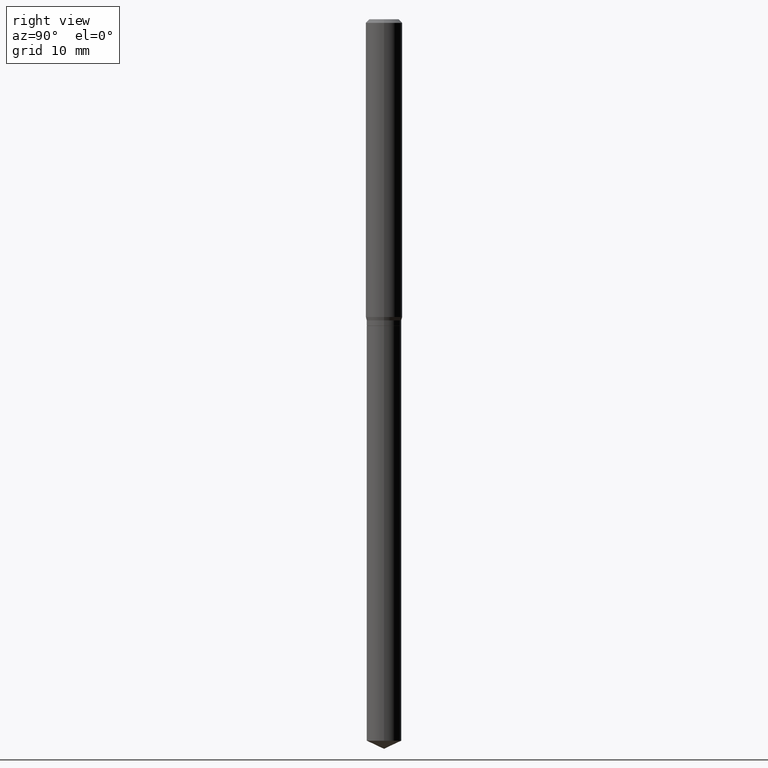
[diagram: clean part render]
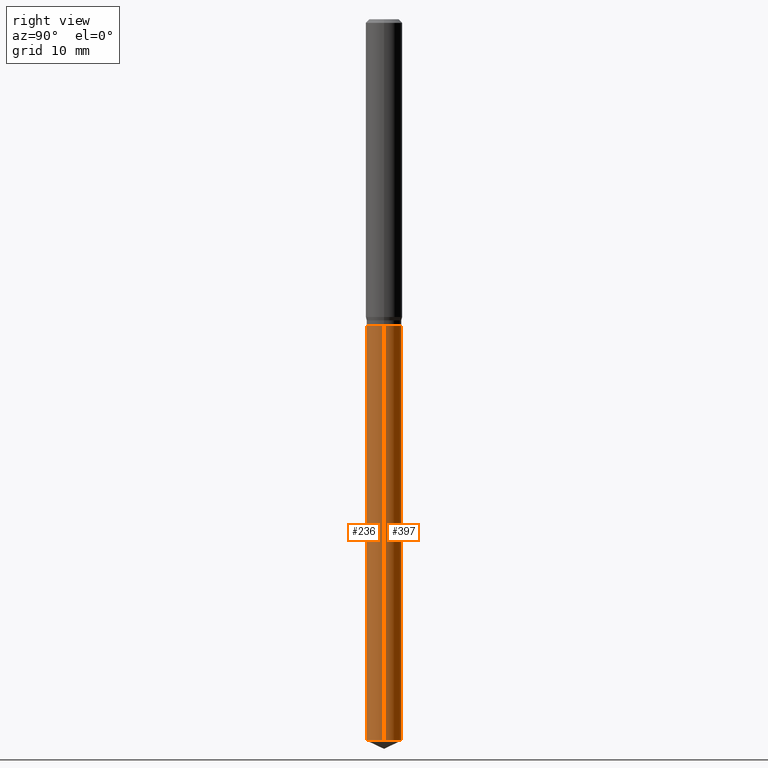
[diagram: same view with one multi-face feature highlighted, each face labeled with its STEP entity id]
A machine part, right view. The highlighted faces form ONE feature: a constant-radius fillet chain: 2 tangent blend faces with common blend radius 1.4249 mm. The faces share edges in the B-rep.
Their STEP definitions:
[1] entity #236 (Cylinder):
#15 = CARTESIAN_POINT ( 'NONE',  ( -0.05610000000000000403, -5.411455121830015965E-15, -0.9921000000000000929 ) ) ;
#24 = DIRECTION ( 'NONE',  ( 1.000000000000000000, -6.982962677686258033E-15, 0.000000000000000000 ) ) ;
#51 = EDGE_CURVE ( 'NONE', #229, #383, #390, .T. ) ;
#53 = CARTESIAN_POINT ( 'NONE',  ( 0.05610000000000000403, -3.855642842484484243E-15, -0.9920999999999998709 ) ) ;
#75 = ORIENTED_EDGE ( 'NONE', *, *, #85, .T. ) ;
#82 = AXIS2_PLACEMENT_3D ( 'NONE', #380, #203, #24 ) ;
#85 = EDGE_CURVE ( 'NONE', #324, #438, #180, .T. ) ;
#90 = ORIENTED_EDGE ( 'NONE', *, *, #256, .T. ) ;
#102 = AXIS2_PLACEMENT_3D ( 'NONE', #115, #225, #119 ) ;
#111 = ORIENTED_EDGE ( 'NONE', *, *, #51, .F. ) ;
#115 = CARTESIAN_POINT ( 'NONE',  ( 2.426149602616274201E-29, -3.463898636266285037E-15, -0.9921000000000000929 ) ) ;
#119 = DIRECTION ( 'NONE',  ( 1.000000000000000000, -6.982962677686266711E-15, 0.000000000000000000 ) ) ;
#126 = CARTESIAN_POINT ( 'NONE',  ( -0.05610000000000000403, -3.065284161504868164E-15, -0.9920999999999998709 ) ) ;
#127 = LINE ( 'NONE', #53, #352 ) ;
#132 = LINE ( 'NONE', #126, #345 ) ;
#141 = CARTESIAN_POINT ( 'NONE',  ( 0.05610000000000000403, -3.855642842484484243E-15, -0.9921000000000000929 ) ) ;
#149 = EDGE_LOOP ( 'NONE', ( #152, #75, #90, #111 ) ) ;
#152 = ORIENTED_EDGE ( 'NONE', *, *, #205, .F. ) ;
#159 = DIRECTION ( 'NONE',  ( 1.000000000000000000, -6.982962677686266711E-15, 0.000000000000000000 ) ) ;
#180 = CIRCLE ( 'NONE', #82, 0.05610000000000000403 ) ;
#189 = AXIS2_PLACEMENT_3D ( 'NONE', #357, #402, #159 ) ;
#203 = DIRECTION ( 'NONE',  ( -2.445468806185136597E-29, 3.491481338843145583E-15, 1.000000000000000000 ) ) ;
#204 = DIRECTION ( 'NONE',  ( -2.445468806185136877E-29, 3.491481338843145188E-15, 1.000000000000000000 ) ) ;
#205 = EDGE_CURVE ( 'NONE', #324, #229, #132, .T. ) ;
#217 = CARTESIAN_POINT ( 'NONE',  ( -0.05610000000000001097, -7.757626082155164556E-15, -2.336040140377504848 ) ) ;
#225 = DIRECTION ( 'NONE',  ( -2.445468806185136597E-29, 3.491481338843145583E-15, 1.000000000000000000 ) ) ;
#229 = VERTEX_POINT ( 'NONE', #15 ) ;
#236 = ADVANCED_FACE ( 'NONE', ( #240 ), #361, .T. ) ;
#240 = FACE_OUTER_BOUND ( 'NONE', #149, .T. ) ;
#256 = EDGE_CURVE ( 'NONE', #438, #383, #127, .T. ) ;
#324 = VERTEX_POINT ( 'NONE', #217 ) ;
#345 = VECTOR ( 'NONE', #395, 39.37007874015748143 ) ;
#352 = VECTOR ( 'NONE', #204, 39.37007874015748143 ) ;
#357 = CARTESIAN_POINT ( 'NONE',  ( 2.426149602616273641E-29, -3.463898636266284249E-15, -0.9920999999999998709 ) ) ;
#361 = CYLINDRICAL_SURFACE ( 'NONE', #189, 0.05610000000000000403 ) ;
#380 = CARTESIAN_POINT ( 'NONE',  ( 5.712713293289535621E-29, -8.156240556916579457E-15, -2.336040140377504848 ) ) ;
#383 = VERTEX_POINT ( 'NONE', #141 ) ;
#390 = CIRCLE ( 'NONE', #102, 0.05610000000000000403 ) ;
#395 = DIRECTION ( 'NONE',  ( -2.445468806185136877E-29, 3.491481338843145188E-15, 1.000000000000000000 ) ) ;
#402 = DIRECTION ( 'NONE',  ( -2.445468806185136597E-29, 3.491481338843145583E-15, 1.000000000000000000 ) ) ;
#413 = CARTESIAN_POINT ( 'NONE',  ( 0.05610000000000001097, -8.547984763134780636E-15, -2.336040140377504848 ) ) ;
#438 = VERTEX_POINT ( 'NONE', #413 ) ;
[2] entity #397 (Cylinder):
#15 = CARTESIAN_POINT ( 'NONE',  ( -0.05610000000000000403, -5.411455121830015965E-15, -0.9921000000000000929 ) ) ;
#36 = AXIS2_PLACEMENT_3D ( 'NONE', #105, #325, #477 ) ;
#53 = CARTESIAN_POINT ( 'NONE',  ( 0.05610000000000000403, -3.855642842484484243E-15, -0.9920999999999998709 ) ) ;
#55 = AXIS2_PLACEMENT_3D ( 'NONE', #323, #471, #94 ) ;
#56 = DIRECTION ( 'NONE',  ( -2.445468806185136597E-29, 3.491481338843145583E-15, 1.000000000000000000 ) ) ;
#69 = CIRCLE ( 'NONE', #130, 0.05610000000000000403 ) ;
#89 = CARTESIAN_POINT ( 'NONE',  ( 5.712713293289535621E-29, -8.156240556916579457E-15, -2.336040140377504848 ) ) ;
#94 = DIRECTION ( 'NONE',  ( 1.000000000000000000, -6.982962677686266711E-15, 0.000000000000000000 ) ) ;
#105 = CARTESIAN_POINT ( 'NONE',  ( 2.426149602616273641E-29, -3.463898636266284249E-15, -0.9920999999999998709 ) ) ;
#126 = CARTESIAN_POINT ( 'NONE',  ( -0.05610000000000000403, -3.065284161504868164E-15, -0.9920999999999998709 ) ) ;
#127 = LINE ( 'NONE', #53, #352 ) ;
#130 = AXIS2_PLACEMENT_3D ( 'NONE', #89, #56, #466 ) ;
#132 = LINE ( 'NONE', #126, #345 ) ;
#141 = CARTESIAN_POINT ( 'NONE',  ( 0.05610000000000000403, -3.855642842484484243E-15, -0.9921000000000000929 ) ) ;
#166 = ORIENTED_EDGE ( 'NONE', *, *, #190, .T. ) ;
#187 = EDGE_CURVE ( 'NONE', #383, #229, #226, .T. ) ;
#190 = EDGE_CURVE ( 'NONE', #438, #324, #69, .T. ) ;
#204 = DIRECTION ( 'NONE',  ( -2.445468806185136877E-29, 3.491481338843145188E-15, 1.000000000000000000 ) ) ;
#205 = EDGE_CURVE ( 'NONE', #324, #229, #132, .T. ) ;
#215 = ORIENTED_EDGE ( 'NONE', *, *, #187, .F. ) ;
#217 = CARTESIAN_POINT ( 'NONE',  ( -0.05610000000000001097, -7.757626082155164556E-15, -2.336040140377504848 ) ) ;
#226 = CIRCLE ( 'NONE', #55, 0.05610000000000000403 ) ;
#229 = VERTEX_POINT ( 'NONE', #15 ) ;
#239 = EDGE_LOOP ( 'NONE', ( #166, #304, #215, #341 ) ) ;
#254 = FACE_OUTER_BOUND ( 'NONE', #239, .T. ) ;
#256 = EDGE_CURVE ( 'NONE', #438, #383, #127, .T. ) ;
#297 = CYLINDRICAL_SURFACE ( 'NONE', #36, 0.05610000000000000403 ) ;
#304 = ORIENTED_EDGE ( 'NONE', *, *, #205, .T. ) ;
#323 = CARTESIAN_POINT ( 'NONE',  ( 2.426149602616274201E-29, -3.463898636266285037E-15, -0.9921000000000000929 ) ) ;
#324 = VERTEX_POINT ( 'NONE', #217 ) ;
#325 = DIRECTION ( 'NONE',  ( -2.445468806185136597E-29, 3.491481338843145583E-15, 1.000000000000000000 ) ) ;
#341 = ORIENTED_EDGE ( 'NONE', *, *, #256, .F. ) ;
#345 = VECTOR ( 'NONE', #395, 39.37007874015748143 ) ;
#352 = VECTOR ( 'NONE', #204, 39.37007874015748143 ) ;
#383 = VERTEX_POINT ( 'NONE', #141 ) ;
#395 = DIRECTION ( 'NONE',  ( -2.445468806185136877E-29, 3.491481338843145188E-15, 1.000000000000000000 ) ) ;
#397 = ADVANCED_FACE ( 'NONE', ( #254 ), #297, .T. ) ;
#413 = CARTESIAN_POINT ( 'NONE',  ( 0.05610000000000001097, -8.547984763134780636E-15, -2.336040140377504848 ) ) ;
#438 = VERTEX_POINT ( 'NONE', #413 ) ;
#466 = DIRECTION ( 'NONE',  ( 1.000000000000000000, -6.982962677686258033E-15, 0.000000000000000000 ) ) ;
#471 = DIRECTION ( 'NONE',  ( -2.445468806185136597E-29, 3.491481338843145583E-15, 1.000000000000000000 ) ) ;
#477 = DIRECTION ( 'NONE',  ( 1.000000000000000000, -6.982962677686266711E-15, 0.000000000000000000 ) ) ;